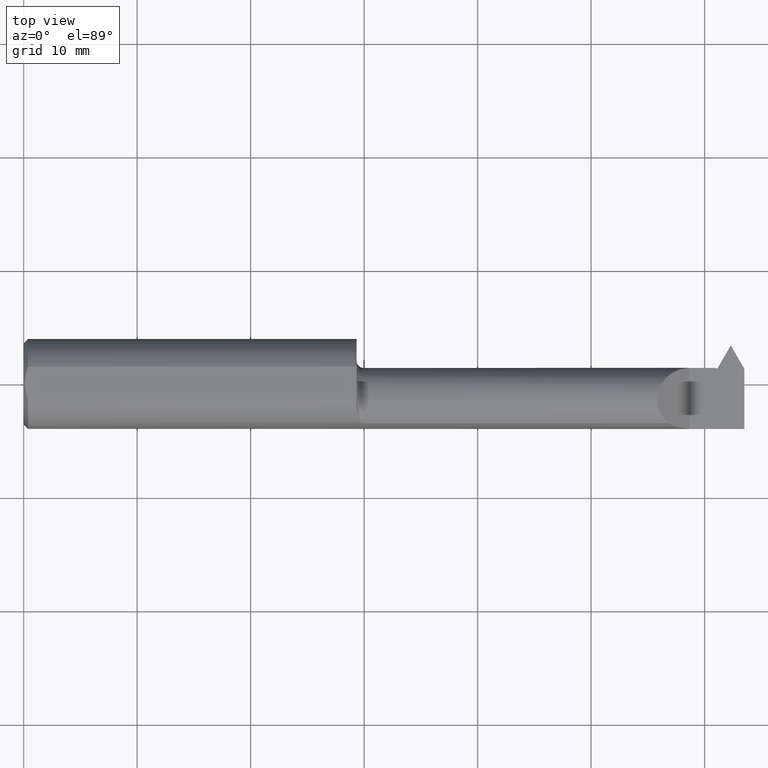
[diagram: clean part render]
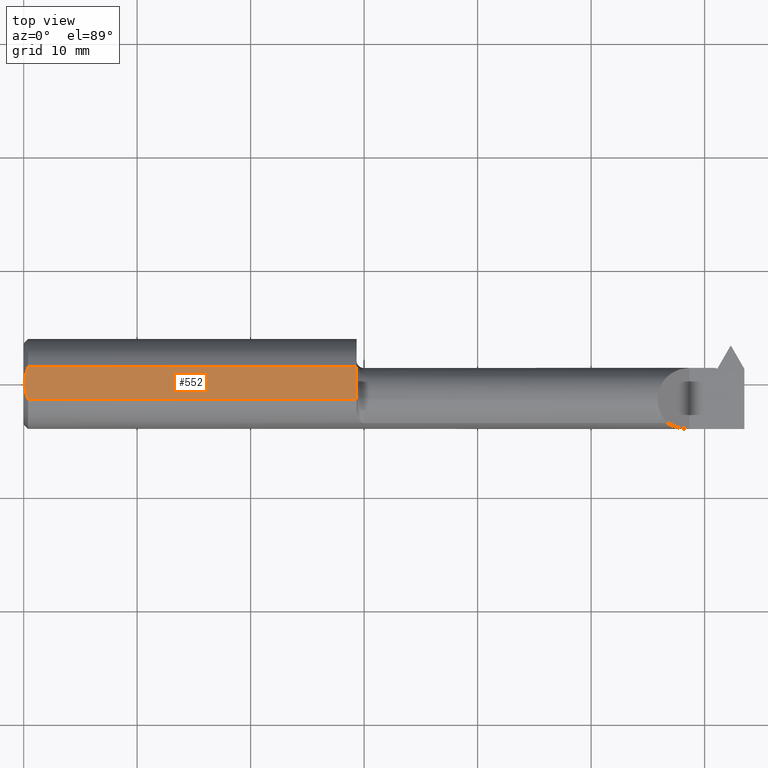
[diagram: same view with one face highlighted and labeled with its STEP entity id]
A machine part, top view. The second image highlights one B-rep face of the part: STEP entity #552.
In plain terms, the highlighted planar face has unit normal (-0, 0, -1).
Its self-contained STEP definition (entity closure, byte-faithful):
#39 = LINE ( 'NONE', #415, #728 ) ;
#45 = ORIENTED_EDGE ( 'NONE', *, *, #410, .F. ) ;
#61 = EDGE_LOOP ( 'NONE', ( #707, #140, #92, #655, #45 ) ) ;
#92 = ORIENTED_EDGE ( 'NONE', *, *, #370, .T. ) ;
#133 = CARTESIAN_POINT ( 'NONE',  ( 0.01499999999999970281, 0.05756040305626781983, 0.1450999999999999512 ) ) ;
#134 = VERTEX_POINT ( 'NONE', #761 ) ;
#140 = ORIENTED_EDGE ( 'NONE', *, *, #760, .F. ) ;
#179 = CARTESIAN_POINT ( 'NONE',  ( 0.01499999999999970975, -0.05756040305626781983, 0.1450999999999999512 ) ) ;
#233 = VERTEX_POINT ( 'NONE', #179 ) ;
#247 = PLANE ( 'NONE',  #772 ) ;
#265 = B_SPLINE_CURVE_WITH_KNOTS ( 'NONE', 3,
 ( #133, #436, #440, #362, #729, #653 ),
 .UNSPECIFIED., .F., .F.,
 ( 4, 2, 4 ),
 ( 0.003161694502929457244, 0.003901142131335591512, 0.004640589759741725780 ),
 .UNSPECIFIED. ) ;
#292 = VERTEX_POINT ( 'NONE', #723 ) ;
#293 = CARTESIAN_POINT ( 'NONE',  ( 2.500000000000000000, 0.05756040305626781983, 0.1450999999999999512 ) ) ;
#332 = DIRECTION ( 'NONE',  ( -0.000000000000000000, 0.000000000000000000, -1.000000000000000000 ) ) ;
#346 = CARTESIAN_POINT ( 'NONE',  ( 0.003999999999999637526, 1.884449684559922719E-17, 0.1450999999999999512 ) ) ;
#353 = VERTEX_POINT ( 'NONE', #941 ) ;
#357 = CARTESIAN_POINT ( 'NONE',  ( 0.008818052469296599680, -0.03886761757380381710, 0.1450999999999999512 ) ) ;
#362 = CARTESIAN_POINT ( 'NONE',  ( 0.005030132703184393185, 0.01970541148932063516, 0.1450999999999999512 ) ) ;
#370 = EDGE_CURVE ( 'NONE', #292, #134, #265, .T. ) ;
#410 = EDGE_CURVE ( 'NONE', #881, #233, #600, .T. ) ;
#415 = CARTESIAN_POINT ( 'NONE',  ( 1.155000000000000027, 0.1749999999999999889, 0.1450999999999999512 ) ) ;
#432 = CARTESIAN_POINT ( 'NONE',  ( 0.003999999999999590689, -0.009851916903761231276, 0.1450999999999999235 ) ) ;
#436 = CARTESIAN_POINT ( 'NONE',  ( 0.01158831187866349310, 0.04830813087846574927, 0.1450999999999999235 ) ) ;
#440 = CARTESIAN_POINT ( 'NONE',  ( 0.008823987512428013366, 0.03887788046871690911, 0.1450999999999999512 ) ) ;
#459 = CARTESIAN_POINT ( 'NONE',  ( 2.500000000000000000, -0.05756040305626781983, 0.1450999999999999512 ) ) ;
#533 = DIRECTION ( 'NONE',  ( -1.000000000000000000, -0.000000000000000000, -0.000000000000000000 ) ) ;
#536 = DIRECTION ( 'NONE',  ( -1.000000000000000000, 0.000000000000000000, 0.000000000000000000 ) ) ;
#541 = VECTOR ( 'NONE', #533, 39.37007874015748143 ) ;
#548 = EDGE_CURVE ( 'NONE', #353, #881, #39, .T. ) ;
#552 = ADVANCED_FACE ( 'NONE', ( #835 ), #247, .F. ) ;
#558 = DIRECTION ( 'NONE',  ( 0.000000000000000000, -1.000000000000000000, 0.000000000000000000 ) ) ;
#584 = LINE ( 'NONE', #293, #789 ) ;
#600 = LINE ( 'NONE', #459, #541 ) ;
#636 = CARTESIAN_POINT ( 'NONE',  ( 0.005011318927232567486, -0.01959047621504285061, 0.1450999999999999512 ) ) ;
#646 = CARTESIAN_POINT ( 'NONE',  ( 0.01161840624095520323, -0.04838974479540041063, 0.1450999999999999790 ) ) ;
#653 = CARTESIAN_POINT ( 'NONE',  ( 0.003999999999999637526, 1.884449684559922719E-17, 0.1450999999999999512 ) ) ;
#655 = ORIENTED_EDGE ( 'NONE', *, *, #803, .T. ) ;
#679 = CARTESIAN_POINT ( 'NONE',  ( 1.155000000000000027, -0.05756040305626783371, 0.1450999999999999512 ) ) ;
#707 = ORIENTED_EDGE ( 'NONE', *, *, #548, .F. ) ;
#713 = DIRECTION ( 'NONE',  ( 1.000000000000000000, 0.000000000000000000, 0.000000000000000000 ) ) ;
#723 = CARTESIAN_POINT ( 'NONE',  ( 0.01499999999999970281, 0.05756040305626781983, 0.1450999999999999512 ) ) ;
#728 = VECTOR ( 'NONE', #558, 39.37007874015748143 ) ;
#729 = CARTESIAN_POINT ( 'NONE',  ( 0.003999999999999592423, 0.009855731042683129120, 0.1450999999999999790 ) ) ;
#760 = EDGE_CURVE ( 'NONE', #292, #353, #584, .T. ) ;
#761 = CARTESIAN_POINT ( 'NONE',  ( 0.003999999999999637526, 1.884449684559922719E-17, 0.1450999999999999512 ) ) ;
#772 = AXIS2_PLACEMENT_3D ( 'NONE', #913, #332, #536 ) ;
#787 = B_SPLINE_CURVE_WITH_KNOTS ( 'NONE', 3,
 ( #346, #432, #636, #357, #646, #944 ),
 .UNSPECIFIED., .F., .F.,
 ( 4, 2, 4 ),
 ( 0.004640589759741725780, 0.005379751224090827816, 0.006118912688439928985 ),
 .UNSPECIFIED. ) ;
#789 = VECTOR ( 'NONE', #713, 39.37007874015748143 ) ;
#803 = EDGE_CURVE ( 'NONE', #134, #233, #787, .T. ) ;
#835 = FACE_OUTER_BOUND ( 'NONE', #61, .T. ) ;
#881 = VERTEX_POINT ( 'NONE', #679 ) ;
#913 = CARTESIAN_POINT ( 'NONE',  ( 0.000000000000000000, 0.1749999999999999889, 0.1450999999999999512 ) ) ;
#941 = CARTESIAN_POINT ( 'NONE',  ( 1.155000000000000027, 0.05756040305626781289, 0.1450999999999999512 ) ) ;
#944 = CARTESIAN_POINT ( 'NONE',  ( 0.01499999999999970975, -0.05756040305626781983, 0.1450999999999999512 ) ) ;